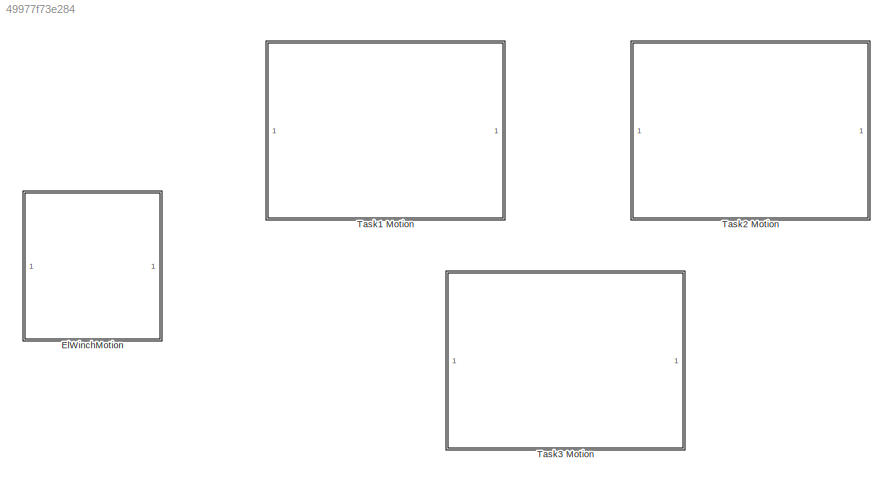
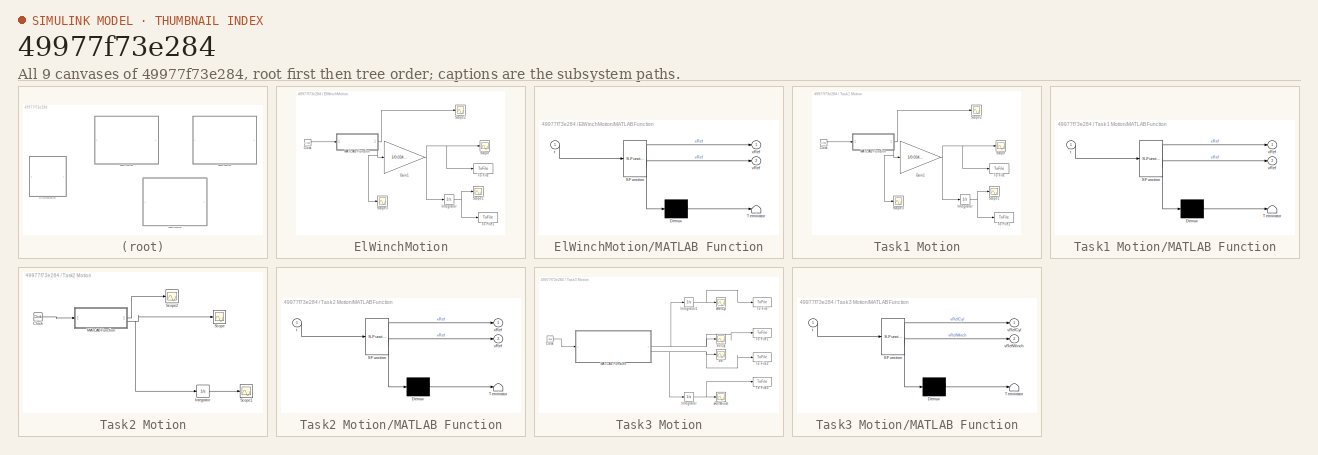
[diagram: thumbnail index - all 9 canvases of the model, root first then tree order]
MODEL slx_49977f73e284
KIND model
CONFIG AbsTol = auto
CONFIG EnableMultiTasking = off
CONFIG FixedStep = 0.01
CONFIG MaxStep = auto
CONFIG MinStep = auto
CONFIG RelTol = 1e-3
CONFIG SampleTimeConstraint = Unconstrained
CONFIG SolverName = FixedStepAuto
CONFIG StartTime = 0.0
CONFIG StopTime = 25
BLOCK [SubSystem] ElWinchMotion
BLOCK [Clock] ElWinchMotion/Clock
BLOCK [Gain] ElWinchMotion/Gain1
  Gain = 1/0.034 * 1/5
BLOCK [Integrator] ElWinchMotion/Integrator
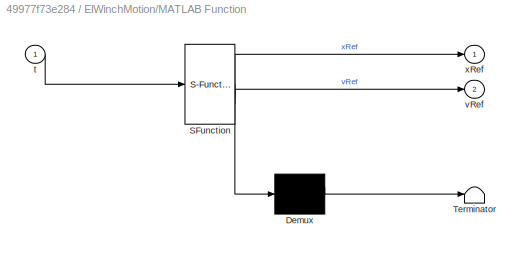
BLOCK [SubSystem] ElWinchMotion/MATLAB Function
  ErrorFcn = Stateflow.Translate.translate
  LibrarySourceBlock = simulink/User-Defined\nFunctions/MATLAB Function
  PermitHierarchicalResolution = ExplicitOnly
  SFBlockType = MATLAB Function
  TreatAsAtomicUnit = on
BLOCK [Demux] ElWinchMotion/MATLAB Function/ Demux 
  Outputs = 1
BLOCK [S-Function] ElWinchMotion/MATLAB Function/ SFunction 
  EnableBusSupport = on
  FunctionName = sf_sfun
  PortCounts = [1 3]
  SFcnIsStateOwnerBlock = off
  SFunctionDeploymentMode = off
  Tag = Stateflow S-Function 4
BLOCK [Terminator] ElWinchMotion/MATLAB Function/ Terminator 
BLOCK [Inport] ElWinchMotion/MATLAB Function/t
BLOCK [Outport] ElWinchMotion/MATLAB Function/vRef
  Port = 2
BLOCK [Outport] ElWinchMotion/MATLAB Function/xRef
BLOCK [Scope] ElWinchMotion/Scope
  Floating = off
  NumInputPorts = 1
  ScopeSpecificationString = Simulink.scopes.TimeScopeBlockCfg('CurrentConfiguration', extmgr.ConfigurationSet(extmgr.Configuration('Core','General UI',true),extmgr.Configuration('Core','Source UI',true),extmgr.Configuration('Sources','WiredSimulink',true,'DataLoggingVariableName','ScopeData1'),extmgr.Configuration('Visuals','Time Domain',true,'SerializedDisplays',{struct('MinYLimReal','-7.35294','MaxYLimReal','7.35294','YLab...<+1442ch>
BLOCK [Scope] ElWinchMotion/Scope1
  Floating = off
  NumInputPorts = 1
  ScopeSpecificationString = Simulink.scopes.TimeScopeBlockCfg('CurrentConfiguration', extmgr.ConfigurationSet(extmgr.Configuration('Core','General UI',true),extmgr.Configuration('Core','Source UI',true),extmgr.Configuration('Sources','WiredSimulink',true,'DataLoggingVariableName','ScopeData2'),extmgr.Configuration('Visuals','Time Domain',true,'SerializedDisplays',{struct('MinYLimReal','-5.14706','MaxYLimReal','46.32353','YLa...<+1731ch>
BLOCK [Scope] ElWinchMotion/Scope2
  Floating = off
  NumInputPorts = 1
  ScopeSpecificationString = Simulink.scopes.TimeScopeBlockCfg('CurrentConfiguration', extmgr.ConfigurationSet(extmgr.Configuration('Core','General UI',true),extmgr.Configuration('Core','Source UI',true),extmgr.Configuration('Sources','WiredSimulink',true,'DataLoggingVariableName','ScopeData3'),extmgr.Configuration('Visuals','Time Domain',true,'SerializedDisplays',{struct('MinYLimReal','0.09','MaxYLimReal','0.11','YLabelReal'...<+1432ch>
BLOCK [Scope] ElWinchMotion/Scope3
  Floating = off
  NumInputPorts = 1
  ScopeSpecificationString = Simulink.scopes.TimeScopeBlockCfg('CurrentConfiguration', extmgr.ConfigurationSet(extmgr.Configuration('Core','General UI',true),extmgr.Configuration('Core','Source UI',true),extmgr.Configuration('Sources','WiredSimulink',true,'DataLoggingVariableName','ScopeData4'),extmgr.Configuration('Visuals','Time Domain',true,'SerializedDisplays',{struct('MinYLimReal','-0.07125','MaxYLimReal','0.07125','YLab...<+1379ch>
BLOCK [ToFile] ElWinchMotion/To File
  Decimation = 2
  Filename = winch_vel_el
  MatrixName = winch_vel
  SampleTime = 0.01
  SaveFormat = Timeseries
BLOCK [ToFile] ElWinchMotion/To File1
  Decimation = 2
  Filename = winch_pos_el
  MatrixName = winch_pos
  SampleTime = 0.01
  SaveFormat = Timeseries
BLOCK [SubSystem] Task1 Motion
BLOCK [Clock] Task1 Motion/Clock
BLOCK [Gain] Task1 Motion/Gain1
  Gain = 1/0.034 * 1/20
BLOCK [Integrator] Task1 Motion/Integrator
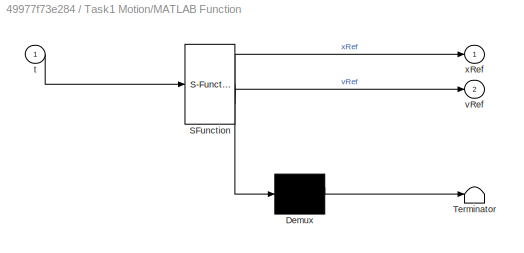
BLOCK [SubSystem] Task1 Motion/MATLAB Function
  ErrorFcn = Stateflow.Translate.translate
  LibrarySourceBlock = simulink/User-Defined\nFunctions/MATLAB Function
  PermitHierarchicalResolution = ExplicitOnly
  SFBlockType = MATLAB Function
  TreatAsAtomicUnit = on
BLOCK [Demux] Task1 Motion/MATLAB Function/ Demux 
  Outputs = 1
BLOCK [S-Function] Task1 Motion/MATLAB Function/ SFunction 
  EnableBusSupport = on
  FunctionName = sf_sfun
  PortCounts = [1 3]
  SFcnIsStateOwnerBlock = off
  SFunctionDeploymentMode = off
  Tag = Stateflow S-Function 2
BLOCK [Terminator] Task1 Motion/MATLAB Function/ Terminator 
BLOCK [Inport] Task1 Motion/MATLAB Function/t
BLOCK [Outport] Task1 Motion/MATLAB Function/vRef
  Port = 2
BLOCK [Outport] Task1 Motion/MATLAB Function/xRef
BLOCK [Scope] Task1 Motion/Scope
  Floating = off
  NumInputPorts = 1
  ScopeSpecificationString = Simulink.scopes.TimeScopeBlockCfg('CurrentConfiguration', extmgr.ConfigurationSet(extmgr.Configuration('Core','General UI',true),extmgr.Configuration('Core','Source UI',true),extmgr.Configuration('Sources','WiredSimulink',true),extmgr.Configuration('Visuals','Time Domain',true,'SerializedDisplays',{struct('MinYLimReal','-0.10478','MaxYLimReal','0.10478','YLabelReal','','MinYLimMag','0.00000','MaxY...<+1403ch>
BLOCK [Scope] Task1 Motion/Scope1
  Floating = off
  NumInputPorts = 1
  ScopeSpecificationString = Simulink.scopes.TimeScopeBlockCfg('CurrentConfiguration', extmgr.ConfigurationSet(extmgr.Configuration('Core','General UI',true),extmgr.Configuration('Core','Source UI',true),extmgr.Configuration('Sources','WiredSimulink',true,'DataLoggingVariableName','ScopeData1'),extmgr.Configuration('Visuals','Time Domain',true,'SerializedDisplays',{struct('MinYLimReal','-0.05018','MaxYLimReal','0.45165','YLab...<+1741ch>
BLOCK [Scope] Task1 Motion/Scope2
  Floating = off
  NumInputPorts = 1
  ScopeSpecificationString = Simulink.scopes.TimeScopeBlockCfg('CurrentConfiguration', extmgr.ConfigurationSet(extmgr.Configuration('Core','General UI',true),extmgr.Configuration('Core','Source UI',true),extmgr.Configuration('Sources','WiredSimulink',true,'DataLoggingVariableName','ScopeData2'),extmgr.Configuration('Visuals','Time Domain',true,'SerializedDisplays',{struct('MinYLimReal','0.09','MaxYLimReal','0.11','YLabelReal'...<+1432ch>
BLOCK [Scope] Task1 Motion/Scope3
  Floating = off
  NumInputPorts = 1
  ScopeSpecificationString = Simulink.scopes.TimeScopeBlockCfg('CurrentConfiguration', extmgr.ConfigurationSet(extmgr.Configuration('Core','General UI',true),extmgr.Configuration('Core','Source UI',true),extmgr.Configuration('Sources','WiredSimulink',true,'DataLoggingVariableName','ScopeData1'),extmgr.Configuration('Visuals','Time Domain',true,'SerializedDisplays',{struct('MinYLimReal','-0.07125','MaxYLimReal','0.07125','YLab...<+1379ch>
BLOCK [ToFile] Task1 Motion/To File
  Decimation = 2
  Filename = winch_vel1
  MatrixName = winch_vel
  SampleTime = 0.01
  SaveFormat = Timeseries
BLOCK [ToFile] Task1 Motion/To File1
  Decimation = 2
  Filename = winch_pos1
  MatrixName = winch_pos
  SampleTime = 0.01
  SaveFormat = Timeseries
BLOCK [SubSystem] Task2 Motion
BLOCK [Clock] Task2 Motion/Clock
BLOCK [Integrator] Task2 Motion/Integrator
  InitialCondition = 0.05
BLOCK [SubSystem] Task2 Motion/MATLAB Function
  ErrorFcn = Stateflow.Translate.translate
  LibrarySourceBlock = simulink/User-Defined\nFunctions/MATLAB Function
  PermitHierarchicalResolution = ExplicitOnly
  SFBlockType = MATLAB Function
  TreatAsAtomicUnit = on
BLOCK [Demux] Task2 Motion/MATLAB Function/ Demux 
  Outputs = 1
BLOCK [S-Function] Task2 Motion/MATLAB Function/ SFunction 
  EnableBusSupport = on
  FunctionName = sf_sfun
  PortCounts = [1 3]
  SFcnIsStateOwnerBlock = off
  SFunctionDeploymentMode = off
  Tag = Stateflow S-Function 1
BLOCK [Terminator] Task2 Motion/MATLAB Function/ Terminator 
BLOCK [Inport] Task2 Motion/MATLAB Function/t
BLOCK [Outport] Task2 Motion/MATLAB Function/vRef
  Port = 2
BLOCK [Outport] Task2 Motion/MATLAB Function/xRef
BLOCK [Scope] Task2 Motion/Scope
  Floating = off
  NumInputPorts = 1
  ScopeSpecificationString = Simulink.scopes.TimeScopeBlockCfg('CurrentConfiguration', extmgr.ConfigurationSet(extmgr.Configuration('Core','General UI',true),extmgr.Configuration('Core','Source UI',true),extmgr.Configuration('Sources','WiredSimulink',true),extmgr.Configuration('Visuals','Time Domain',true,'SerializedDisplays',{struct('MinYLimReal','-0.18125','MaxYLimReal','0.13125','YLabelReal','','MinYLimMag','0.00000','MaxY...<+1441ch>
BLOCK [Scope] Task2 Motion/Scope1
  Floating = off
  NumInputPorts = 1
  ScopeSpecificationString = Simulink.scopes.TimeScopeBlockCfg('CurrentConfiguration', extmgr.ConfigurationSet(extmgr.Configuration('Core','General UI',true),extmgr.Configuration('Core','Source UI',true),extmgr.Configuration('Sources','WiredSimulink',true,'DataLoggingVariableName','ScopeData1'),extmgr.Configuration('Visuals','Time Domain',true,'SerializedDisplays',{struct('MinYLimReal','-0.00000','MaxYLimReal','0.5','YLabelRe...<+1703ch>
BLOCK [Scope] Task2 Motion/Scope2
  Floating = off
  NumInputPorts = 1
  ScopeSpecificationString = Simulink.scopes.TimeScopeBlockCfg('CurrentConfiguration', extmgr.ConfigurationSet(extmgr.Configuration('Core','General UI',true),extmgr.Configuration('Core','Source UI',true),extmgr.Configuration('Sources','WiredSimulink',true,'DataLoggingVariableName','ScopeData2'),extmgr.Configuration('Visuals','Time Domain',true,'SerializedDisplays',{struct('MinYLimReal','-0.05618','MaxYLimReal','0.50569','YLab...<+1504ch>
BLOCK [SubSystem] Task3 Motion
BLOCK [Clock] Task3 Motion/Clock
BLOCK [Integrator] Task3 Motion/Integrator
  InitialCondition = 0.1
BLOCK [Integrator] Task3 Motion/Integrator1
  InitialCondition = 0.05
BLOCK [SubSystem] Task3 Motion/MATLAB Function
  ErrorFcn = Stateflow.Translate.translate
  LibrarySourceBlock = simulink/User-Defined\nFunctions/MATLAB Function
  PermitHierarchicalResolution = ExplicitOnly
  SFBlockType = MATLAB Function
  TreatAsAtomicUnit = on
BLOCK [Demux] Task3 Motion/MATLAB Function/ Demux 
  Outputs = 1
BLOCK [S-Function] Task3 Motion/MATLAB Function/ SFunction 
  EnableBusSupport = on
  FunctionName = sf_sfun
  PortCounts = [1 3]
  SFcnIsStateOwnerBlock = off
  SFunctionDeploymentMode = off
  Tag = Stateflow S-Function 3
BLOCK [Terminator] Task3 Motion/MATLAB Function/ Terminator 
BLOCK [Inport] Task3 Motion/MATLAB Function/t
BLOCK [Outport] Task3 Motion/MATLAB Function/vRefCyl
BLOCK [Outport] Task3 Motion/MATLAB Function/vRefWinch
  Port = 2
BLOCK [ToFile] Task3 Motion/To File
  Commented = on
  Filename = cyl_pos_ref.mat
  MatrixName = cyl_pos_task3
  SaveFormat = Timeseries
BLOCK [ToFile] Task3 Motion/To File1
  Commented = on
  Filename = cyl_vel_ref.mat
  MatrixName = cyl_vel_task3
  SaveFormat = Timeseries
BLOCK [ToFile] Task3 Motion/To File2
  Commented = on
  Filename = winch_vel_ref.mat
  MatrixName = winch_vel_task3
  SaveFormat = Timeseries
BLOCK [ToFile] Task3 Motion/To File3
  Commented = on
  Filename = winch_pos_ref.mat
  MatrixName = winch_pos_task3
  SaveFormat = Timeseries
BLOCK [Scope] Task3 Motion/Vel
  Floating = off
  NumInputPorts = 1
  ScopeSpecificationString = Simulink.scopes.TimeScopeBlockCfg('CurrentConfiguration', extmgr.ConfigurationSet(extmgr.Configuration('Core','General UI',true),extmgr.Configuration('Core','Source UI',true),extmgr.Configuration('Sources','WiredSimulink',true),extmgr.Configuration('Visuals','Time Domain',true,'SerializedDisplays',{struct('MinYLimReal','-0.09375','MaxYLimReal','0.09375','YLabelReal','','MinYLimMag','0.00000','MaxY...<+1419ch>
BLOCK [Scope] Task3 Motion/VelCyl
  Floating = off
  NumInputPorts = 1
  ScopeSpecificationString = Simulink.scopes.TimeScopeBlockCfg('CurrentConfiguration', extmgr.ConfigurationSet(extmgr.Configuration('Core','General UI',true),extmgr.Configuration('Core','Source UI',true),extmgr.Configuration('Sources','WiredSimulink',true,'DataLoggingVariableName','ScopeData2'),extmgr.Configuration('Visuals','Time Domain',true,'SerializedDisplays',{struct('MinYLimReal','-0.0625','MaxYLimReal','0.0625','YLabel...<+1450ch>
BLOCK [Scope] Task3 Motion/xRefCyl
  Floating = off
  NumInputPorts = 1
  ScopeSpecificationString = Simulink.scopes.TimeScopeBlockCfg('CurrentConfiguration', extmgr.ConfigurationSet(extmgr.Configuration('Core','General UI',true),extmgr.Configuration('Core','Source UI',true),extmgr.Configuration('Sources','WiredSimulink',true,'DataLoggingVariableName','ScopeData3'),extmgr.Configuration('Visuals','Time Domain',true,'SerializedDisplays',{struct('MinYLimReal','-0.00000','MaxYLimReal','0.5','YLabelRe...<+1354ch>
BLOCK [Scope] Task3 Motion/xRefWinch
  Floating = off
  NumInputPorts = 1
  ScopeSpecificationString = Simulink.scopes.TimeScopeBlockCfg('CurrentConfiguration', extmgr.ConfigurationSet(extmgr.Configuration('Core','General UI',true),extmgr.Configuration('Core','Source UI',true),extmgr.Configuration('Sources','WiredSimulink',true,'DataLoggingVariableName','ScopeData1'),extmgr.Configuration('Visuals','Time Domain',true,'SerializedDisplays',{struct('MinYLimReal','0.03788','MaxYLimReal','0.65912','YLabe...<+1435ch>
LINE ElWinchMotion/Clock:1 -> ElWinchMotion/MATLAB Function:1
NET ElWinchMotion/Gain1:1 -> ElWinchMotion/Integrator:1, ElWinchMotion/Scope:1, ElWinchMotion/To File:1
NET ElWinchMotion/Integrator:1 -> ElWinchMotion/Scope1:1, ElWinchMotion/To File1:1
LINE ElWinchMotion/MATLAB Function:1 -> ElWinchMotion/Scope2:1
NET ElWinchMotion/MATLAB Function:2 -> ElWinchMotion/Gain1:1, ElWinchMotion/Scope3:1
LINE Task1 Motion/Clock:1 -> Task1 Motion/MATLAB Function:1
NET Task1 Motion/Gain1:1 -> Task1 Motion/Integrator:1, Task1 Motion/Scope:1, Task1 Motion/To File:1
NET Task1 Motion/Integrator:1 -> Task1 Motion/Scope1:1, Task1 Motion/To File1:1
LINE Task1 Motion/MATLAB Function:1 -> Task1 Motion/Scope2:1
NET Task1 Motion/MATLAB Function:2 -> Task1 Motion/Gain1:1, Task1 Motion/Scope3:1
LINE Task2 Motion/Clock:1 -> Task2 Motion/MATLAB Function:1
LINE Task2 Motion/Integrator:1 -> Task2 Motion/Scope1:1
LINE Task2 Motion/MATLAB Function:1 -> Task2 Motion/Scope2:1
NET Task2 Motion/MATLAB Function:2 -> Task2 Motion/Integrator:1, Task2 Motion/Scope:1
LINE Task3 Motion/Clock:1 -> Task3 Motion/MATLAB Function:1
NET Task3 Motion/Integrator1:1 -> Task3 Motion/To File:1, Task3 Motion/xRefCyl:1
NET Task3 Motion/Integrator:1 -> Task3 Motion/To File3:1, Task3 Motion/xRefWinch:1
NET Task3 Motion/MATLAB Function:1 -> Task3 Motion/Integrator1:1, Task3 Motion/To File1:1, Task3 Motion/VelCyl:1
NET Task3 Motion/MATLAB Function:2 -> Task3 Motion/Integrator:1, Task3 Motion/To File2:1, Task3 Motion/Vel:1
note: NET lines group one-source signal fan-out (src -> all destinations, sorted); 1:1 wires keep LINE
CHART Task1 Motion/MATLAB Function states=1 transitions=1
  STATE_LABEL 'eML_blk_kernel()'
  STATE_LABEL 'SCRIPT:\nfunction [xRef,vRef] = MotionRefTask1(t)\nxRef = 0.1;\n\nvRef = 0.0;\n\ntRamp = 1.0;\n\nvSet = 0.039;\nif t < 1.0\n    vRef = 0.0;\nelseif t >= 1.0 && t < 2.0\n    vRef = vSet*(t - tRamp);\nelseif t >= 2.0 && t < 8.0\n    vRef = vSet;\nelseif t >= 8.0 && t < 9.0\n    t1 = (t - 9.0);\n    vRef = -vSet * t1;\nelseif t >=9.0 && t < 14.0\n    vRef = 0.0; \nelseif t >=14.0 && t < 15.0\n    t2 = (t - 14.0);\n    vRe...<+152ch>'
CHART Task3 Motion/MATLAB Function states=1 transitions=1
  STATE_LABEL 'eML_blk_kernel()'
  STATE_LABEL 'SCRIPT:\nfunction [vRefCyl,vRefWinch] = MotionRefTask1(t)\nxRef = 0.1;\n\nvRefCyl = 0.0;\nvRefWinch = 0.0; \n\ntRamp = 1.0;\n\nvSetWinch = 0.071;\nvSetCyl = 0.05;\n\nif t < 1.0\n    vRefWinch = 0.0;\n    vRefCyl = 0.0;\nelseif t >= 1.0 && t < 2.0\n    vRefWinch = vSetWinch*(t - tRamp);\n    vRefCyl = 0.0;\nelseif t >= 2.0 && t < 8.0\n    vRefWinch = vSetWinch;\n    vRefCyl = 0.0;\nelseif t >= 8.0 && t < 9.0\n    t1 = (...<+1075ch>'
CHART ElWinchMotion/MATLAB Function states=1 transitions=1
  STATE_LABEL 'eML_blk_kernel()'
  STATE_LABEL 'SCRIPT:\nfunction [xRef,vRef] = MotionRefTask1(t)\nxRef = 0.1;\n\nvRef = 0.0;\n\ntRamp = 1.0;\n\nvSet = 1.0;\nif t < 1.0\n    vRef = 0.0;\nelseif t >= 1.0 && t < 2.0\n    vRef = vSet*(t - tRamp);\nelseif t >= 2.0 && t < 8.0\n    vRef = vSet;\nelseif t >= 8.0 && t < 9.0\n    t1 = (t - 9.0);\n    vRef = -vSet * t1;\nelseif t >=9.0 && t < 14.0\n    vRef = 0.0; \nelseif t >=14.0 && t < 15.0\n    t2 = (t - 14.0);\n    vRef ...<+150ch>'
CHART Task2 Motion/MATLAB Function states=1 transitions=1
  STATE_LABEL 'eML_blk_kernel()'
  STATE_LABEL 'SCRIPT:\nfunction [xRef,vRef] = MotionRefTask1(t)\nxRef = 0.1;\n\nvRef = 0.0;\n\ntRamp = 1.0;\n\nvSet = 0.05;\nif t < 1.0\n    vRef = 0.0;\nelseif t >= 1.0 && t < 2.0\n    vRef = vSet*(t - tRamp);\nelseif t >= 2.0 && t < 9.0\n    vRef = vSet;\nelseif t >= 9.0 && t < 10.0\n    t1 = (t - 9.0);\n    vRef = -vSet * t1 + 0.05;\nelseif t >=9.0 && t < 14.0\n    vRef = 0.0; \nelseif t >=15.0 && t < 16.0\n    t2 = (t - 15.0);\n...<+159ch>'
CHART  states=0 transitions=0
CHART  states=0 transitions=0
CHART  states=0 transitions=0
CHART  states=0 transitions=0
